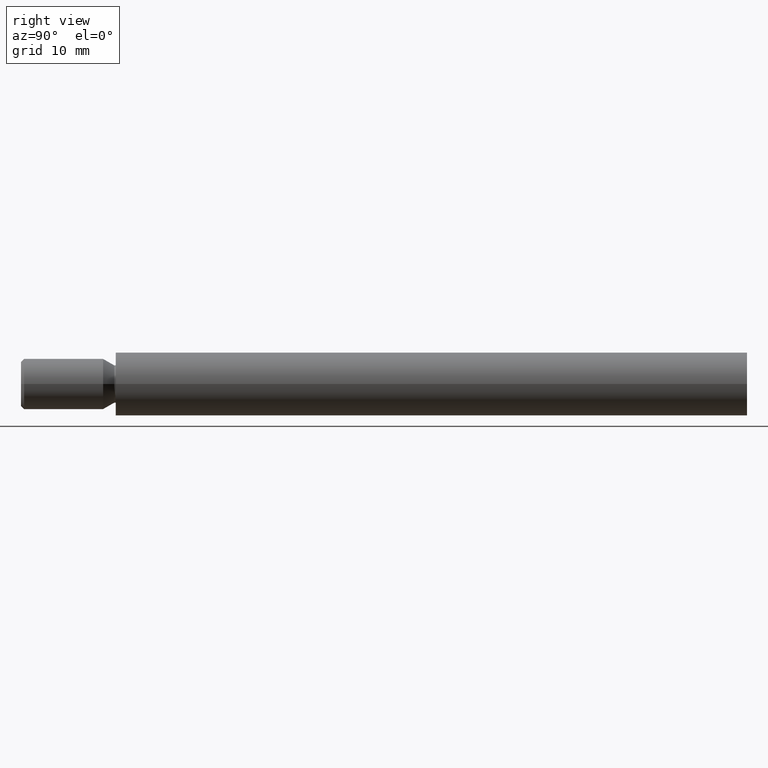
[diagram: clean part render]
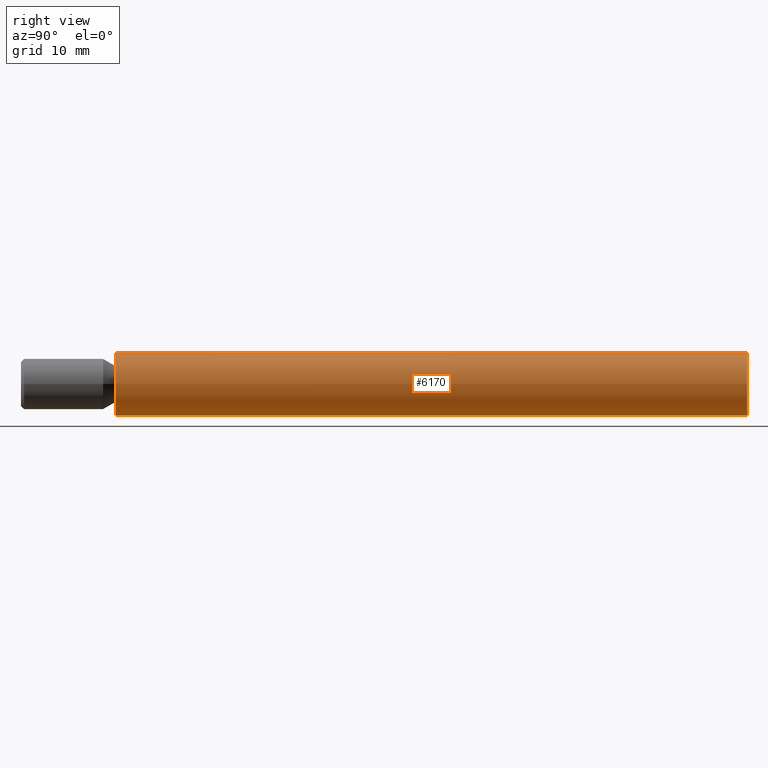
[diagram: same view with one face highlighted and labeled with its STEP entity id]
A machine part, right view. The second image highlights one B-rep face of the part: STEP entity #6170.
In plain terms, the highlighted cylindrical surface (bore or boss wall) has radius 5 mm, axis along (0, -1, -0).
Its self-contained STEP definition (entity closure, byte-faithful):
#15 = DIRECTION ( 'NONE',  ( 1.674721690771509348E-33, -1.000000000000000000, -0.000000000000000000 ) ) ;
#504 = EDGE_CURVE ( 'NONE', #2290, #2290, #11768, .T. ) ;
#873 = CARTESIAN_POINT ( 'NONE',  ( 1.674721690771509485E-31, 0.000000000000000000, 0.000000000000000000 ) ) ;
#1117 = AXIS2_PLACEMENT_3D ( 'NONE', #3930, #8852, #7048 ) ;
#1885 = DIRECTION ( 'NONE',  ( 1.674721690771509348E-33, -1.000000000000000000, -0.000000000000000000 ) ) ;
#2011 = AXIS2_PLACEMENT_3D ( 'NONE', #873, #1885, #12483 ) ;
#2176 = FACE_OUTER_BOUND ( 'NONE', #5224, .T. ) ;
#2197 = CARTESIAN_POINT ( 'NONE',  ( 4.999999999999993783, 100.0000000000000000, 0.000000000000000000 ) ) ;
#2290 = VERTEX_POINT ( 'NONE', #2197 ) ;
#2517 = CYLINDRICAL_SURFACE ( 'NONE', #12649, 4.999999999999999112 ) ;
#2926 = ORIENTED_EDGE ( 'NONE', *, *, #10679, .F. ) ;
#3930 = CARTESIAN_POINT ( 'NONE',  ( 0.000000000000000000, 100.0000000000000000, 0.000000000000000000 ) ) ;
#5224 = EDGE_LOOP ( 'NONE', ( #2926 ) ) ;
#5316 = FACE_OUTER_BOUND ( 'NONE', #10819, .T. ) ;
#5928 = VERTEX_POINT ( 'NONE', #6342 ) ;
#6170 = ADVANCED_FACE ( 'NONE', ( #5316, #2176 ), #2517, .T. ) ;
#6200 = CARTESIAN_POINT ( 'NONE',  ( 1.925929944387235853E-31, -15.00000000000000000, 0.000000000000000000 ) ) ;
#6342 = CARTESIAN_POINT ( 'NONE',  ( 5.000000000000005329, 8.373608453857555636E-33, 0.000000000000000000 ) ) ;
#7048 = DIRECTION ( 'NONE',  ( 1.000000000000000000, 0.000000000000000000, 0.000000000000000000 ) ) ;
#8204 = CIRCLE ( 'NONE', #2011, 5.000000000000005329 ) ;
#8852 = DIRECTION ( 'NONE',  ( 1.674721690771509348E-33, -1.000000000000000000, -0.000000000000000000 ) ) ;
#9715 = ORIENTED_EDGE ( 'NONE', *, *, #504, .T. ) ;
#10482 = DIRECTION ( 'NONE',  ( 1.000000000000000000, 0.000000000000000000, 0.000000000000000000 ) ) ;
#10679 = EDGE_CURVE ( 'NONE', #5928, #5928, #8204, .T. ) ;
#10819 = EDGE_LOOP ( 'NONE', ( #9715 ) ) ;
#11768 = CIRCLE ( 'NONE', #1117, 4.999999999999993783 ) ;
#12483 = DIRECTION ( 'NONE',  ( 1.000000000000000000, 1.674721690771509348E-33, 0.000000000000000000 ) ) ;
#12649 = AXIS2_PLACEMENT_3D ( 'NONE', #6200, #15, #10482 ) ;